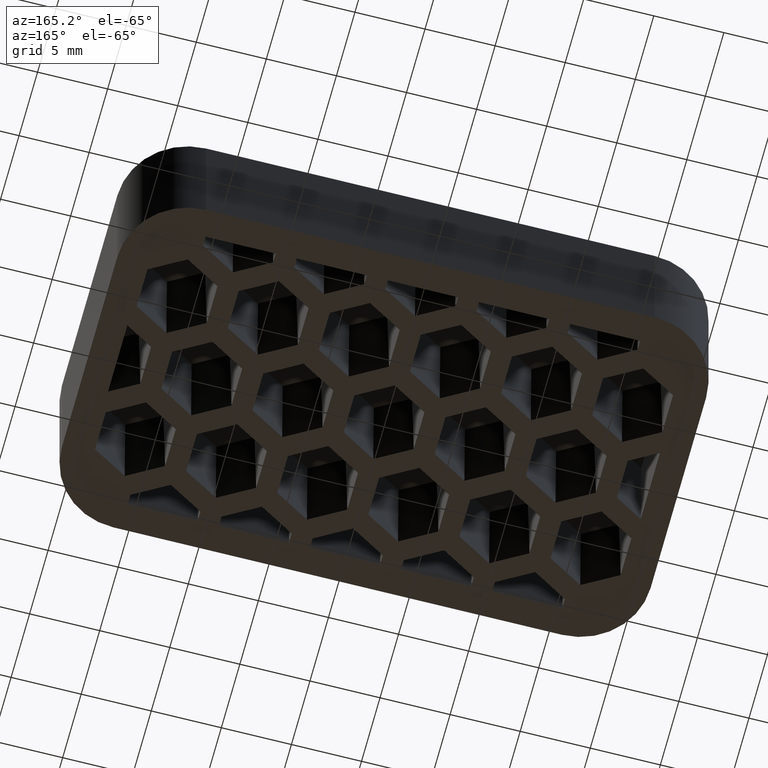
[diagram: clean part render]
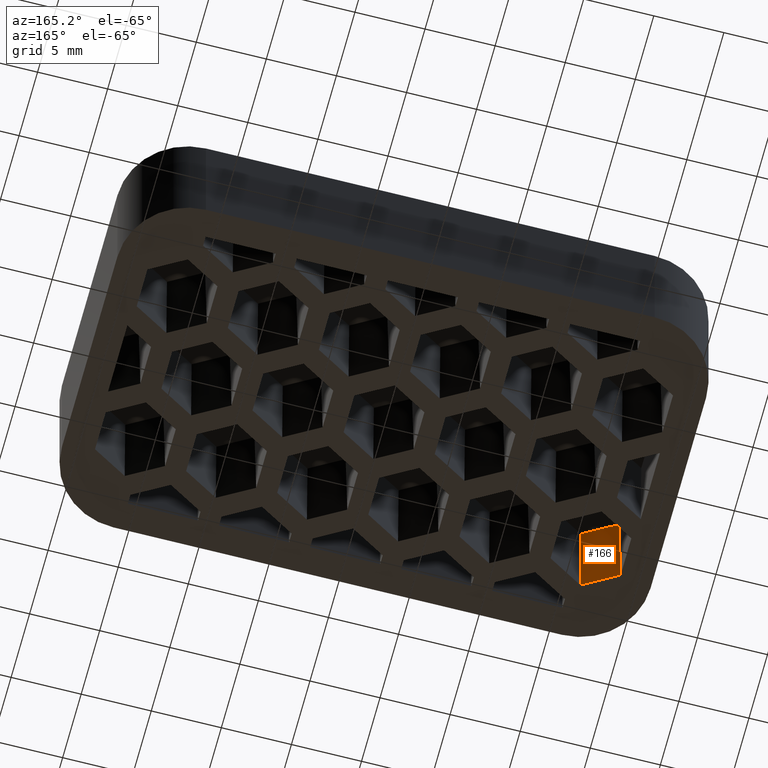
[diagram: same view with one face highlighted and labeled with its STEP entity id]
A machine part, auxiliary view. The second image highlights one B-rep face of the part: STEP entity #166.
In plain terms, the highlighted planar face has unit normal (-0.4999, -0.8659, 0.0175).
Its self-contained STEP definition (entity closure, byte-faithful):
#166 = ADVANCED_FACE( '', ( #530 ), #531, .F. );
#530 = FACE_OUTER_BOUND( '', #1040, .T. );
#531 = PLANE( '', #1041 );
#1040 = EDGE_LOOP( '', ( #2187, #2188, #2189, #2190 ) );
#1041 = AXIS2_PLACEMENT_3D( '', #2191, #2192, #2193 );
#2187 = ORIENTED_EDGE( '', *, *, #3412, .T. );
#2188 = ORIENTED_EDGE( '', *, *, #3582, .F. );
#2189 = ORIENTED_EDGE( '', *, *, #3583, .F. );
#2190 = ORIENTED_EDGE( '', *, *, #3580, .T. );
#2191 = CARTESIAN_POINT( '', ( -5.25000000000002, -14.8667694316329, -6.02859688856773E-015 ) );
#2192 = DIRECTION( '', ( -0.499923847578196, -0.865893503920754, 0.0174524064372836 ) );
#2193 = DIRECTION( '', ( 0.866025403784439, -0.500000000000000, 3.06058338817720E-017 ) );
#3412 = EDGE_CURVE( '', #4187, #4185, #4188, .T. );
#3580 = EDGE_CURVE( '', #4451, #4187, #4452, .T. );
#3582 = EDGE_CURVE( '', #4454, #4185, #4455, .T. );
#3583 = EDGE_CURVE( '', #4451, #4454, #4456, .T. );
#4185 = VERTEX_POINT( '', #5348 );
#4187 = VERTEX_POINT( '', #5351 );
#4188 = LINE( '', #5352, #5353 );
#4451 = VERTEX_POINT( '', #5783 );
#4452 = LINE( '', #5784, #5785 );
#4454 = VERTEX_POINT( '', #5788 );
#4455 = LINE( '', #5789, #5790 );
#4456 = LINE( '', #5791, #5792 );
#5348 = CARTESIAN_POINT( '', ( -18.7500000000000, -7.07254079757292, -6.50583998398844E-015 ) );
#5351 = CARTESIAN_POINT( '', ( -16.2500000000000, -8.51591647054698, -6.41746163298461E-015 ) );
#5352 = CARTESIAN_POINT( '', ( -5.25000000000002, -14.8667694316329, -6.02859688856773E-015 ) );
#5353 = VECTOR( '', #6580, 1000.00000000000 );
#5783 = CARTESIAN_POINT( '', ( -16.2500000000000, -8.35467348758652, 7.99999999999999 ) );
#5784 = CARTESIAN_POINT( '', ( -16.2500000000000, -8.51190156590242, 0.199197736030326 ) );
#5785 = VECTOR( '', #6748, 1000.00000000000 );
#5788 = CARTESIAN_POINT( '', ( -18.6103594805743, -6.99191930609268, 7.99999999999999 ) );
#5789 = CARTESIAN_POINT( '', ( -18.7472589998765, -7.07095828041374, 0.157031791907119 ) );
#5790 = VECTOR( '', #6750, 1000.00000000000 );
#5791 = CARTESIAN_POINT( '', ( -5.18017974028715, -14.7458371944125, 7.99999999999999 ) );
#5792 = VECTOR( '', #6751, 1000.00000000000 );
#6580 = DIRECTION( '', ( -0.866025403784439, 0.500000000000000, -3.06151588455594E-017 ) );
#6748 = DIRECTION( '', ( -5.01127490236358E-019, -0.0201512801671580, -0.999796942337605 ) );
#6750 = DIRECTION( '', ( -0.0174515205435363, -0.0100756400835790, -0.999796942337605 ) );
#6751 = DIRECTION( '', ( -0.866025403784439, 0.500000000000000, -3.06151588455594E-017 ) );